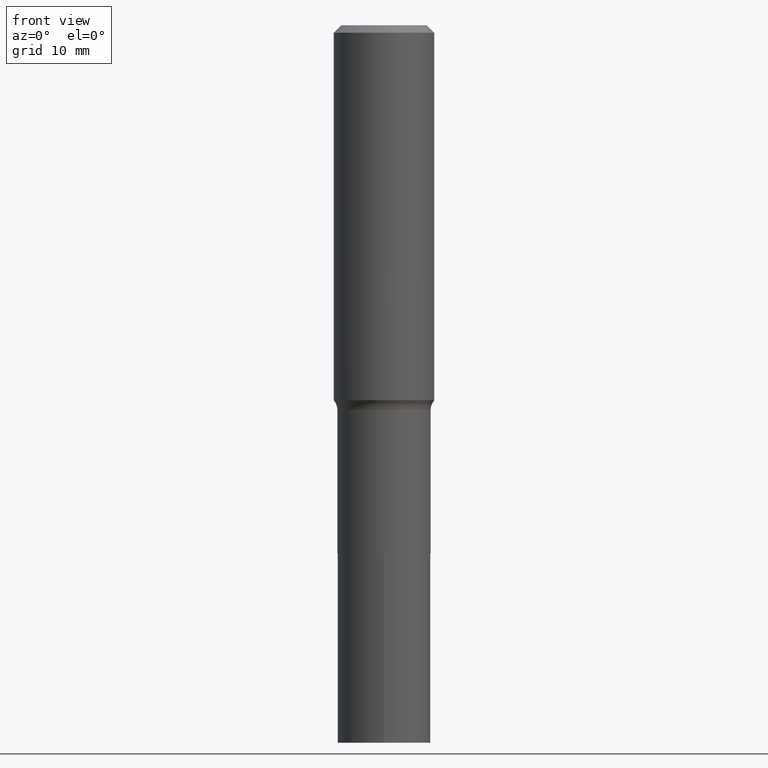
[diagram: clean part render]
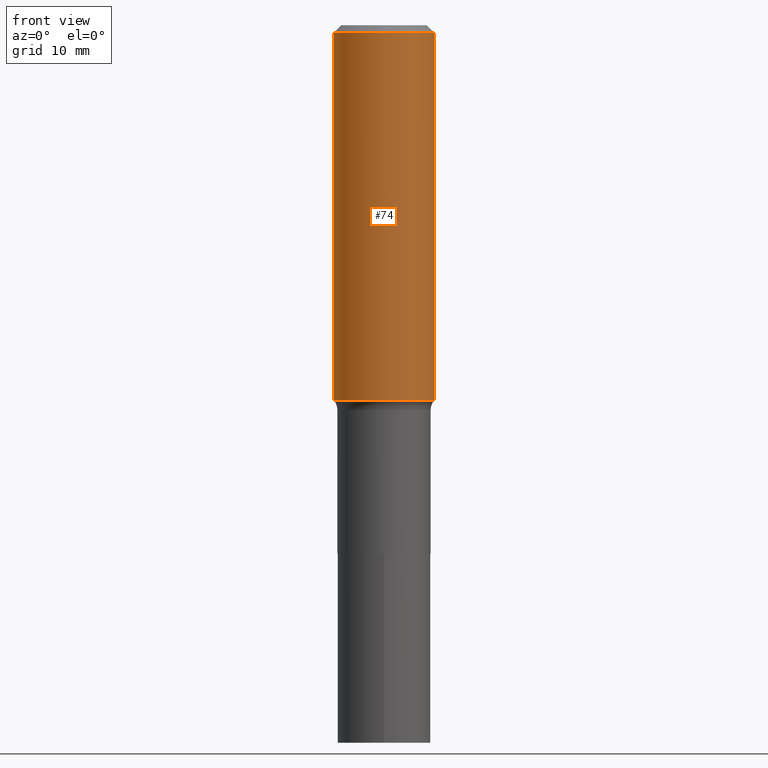
[diagram: same view with one face highlighted and labeled with its STEP entity id]
A machine part, front view. The second image highlights one B-rep face of the part: STEP entity #74.
In plain terms, the highlighted cylindrical surface (partial cylindrical patch) has radius 7.0002 mm, axis along (-0, 0, 1).
Its self-contained STEP definition (entity closure, byte-faithful):
#4 = VECTOR ( 'NONE', #52, 39.37007874015748143 ) ;
#7 = ORIENTED_EDGE ( 'NONE', *, *, #109, .T. ) ;
#14 = CARTESIAN_POINT ( 'NONE',  ( -0.2756000000000000116, -1.705996447411659768E-15, -0.04134000000000027930 ) ) ;
#29 = EDGE_CURVE ( 'NONE', #298, #326, #403, .T. ) ;
#46 = DIRECTION ( 'NONE',  ( -2.445468806185136877E-29, 3.491481338843145188E-15, 1.000000000000000000 ) ) ;
#52 = DIRECTION ( 'NONE',  ( -2.445468806185136877E-29, 3.491481338843145188E-15, 1.000000000000000000 ) ) ;
#64 = CARTESIAN_POINT ( 'NONE',  ( 5.031862883494752694E-29, -7.184166615785218698E-15, -2.057627098234926510 ) ) ;
#74 = ADVANCED_FACE ( 'NONE', ( #232 ), #187, .T. ) ;
#76 = LINE ( 'NONE', #269, #4 ) ;
#77 = AXIS2_PLACEMENT_3D ( 'NONE', #333, #81, #266 ) ;
#81 = DIRECTION ( 'NONE',  ( -2.445468806185136597E-29, 3.491481338843145583E-15, 1.000000000000000000 ) ) ;
#109 = EDGE_CURVE ( 'NONE', #326, #191, #76, .T. ) ;
#122 = CARTESIAN_POINT ( 'NONE',  ( 1.010956804476942398E-30, -1.443378385477766056E-16, -0.04134000000000027930 ) ) ;
#182 = EDGE_LOOP ( 'NONE', ( #251, #196, #7, #467 ) ) ;
#187 = CYLINDRICAL_SURFACE ( 'NONE', #77, 0.2756000000000001227 ) ;
#189 = CARTESIAN_POINT ( 'NONE',  ( -0.2756000000000001227, 1.958255779754836984E-15, -1.355658510874252567E-29 ) ) ;
#191 = VERTEX_POINT ( 'NONE', #382 ) ;
#193 = DIRECTION ( 'NONE',  ( -2.445468806185136597E-29, 3.491481338843145583E-15, 1.000000000000000000 ) ) ;
#196 = ORIENTED_EDGE ( 'NONE', *, *, #29, .T. ) ;
#201 = CARTESIAN_POINT ( 'NONE',  ( 0.2756000000000002892, -9.108671129755555229E-15, -2.057627098234926510 ) ) ;
#215 = DIRECTION ( 'NONE',  ( 1.000000000000000000, -6.982962677686265922E-15, 0.000000000000000000 ) ) ;
#216 = CIRCLE ( 'NONE', #356, 0.2756000000000000116 ) ;
#223 = LINE ( 'NONE', #189, #321 ) ;
#232 = FACE_OUTER_BOUND ( 'NONE', #182, .T. ) ;
#251 = ORIENTED_EDGE ( 'NONE', *, *, #363, .F. ) ;
#265 = VERTEX_POINT ( 'NONE', #14 ) ;
#266 = DIRECTION ( 'NONE',  ( 1.000000000000000000, -6.982962677686267499E-15, 4.876176775795935793E-29 ) ) ;
#269 = CARTESIAN_POINT ( 'NONE',  ( 0.2756000000000001227, -1.924504513970336137E-15, 1.343874319409360548E-29 ) ) ;
#292 = EDGE_CURVE ( 'NONE', #265, #191, #216, .T. ) ;
#295 = DIRECTION ( 'NONE',  ( 1.000000000000000000, -6.982962677686267499E-15, 0.000000000000000000 ) ) ;
#298 = VERTEX_POINT ( 'NONE', #366 ) ;
#317 = DIRECTION ( 'NONE',  ( -2.445468806185136597E-29, 3.491481338843145583E-15, 1.000000000000000000 ) ) ;
#321 = VECTOR ( 'NONE', #46, 39.37007874015748143 ) ;
#326 = VERTEX_POINT ( 'NONE', #201 ) ;
#333 = CARTESIAN_POINT ( 'NONE',  ( 0.000000000000000000, 0.000000000000000000, 0.000000000000000000 ) ) ;
#334 = AXIS2_PLACEMENT_3D ( 'NONE', #64, #317, #215 ) ;
#356 = AXIS2_PLACEMENT_3D ( 'NONE', #122, #193, #295 ) ;
#363 = EDGE_CURVE ( 'NONE', #298, #265, #223, .T. ) ;
#366 = CARTESIAN_POINT ( 'NONE',  ( -0.2756000000000002892, -5.225910836030380530E-15, -2.057627098234926510 ) ) ;
#382 = CARTESIAN_POINT ( 'NONE',  ( 0.2756000000000000116, -2.068842352518111732E-15, -0.04134000000000027930 ) ) ;
#403 = CIRCLE ( 'NONE', #334, 0.2756000000000002892 ) ;
#467 = ORIENTED_EDGE ( 'NONE', *, *, #292, .F. ) ;